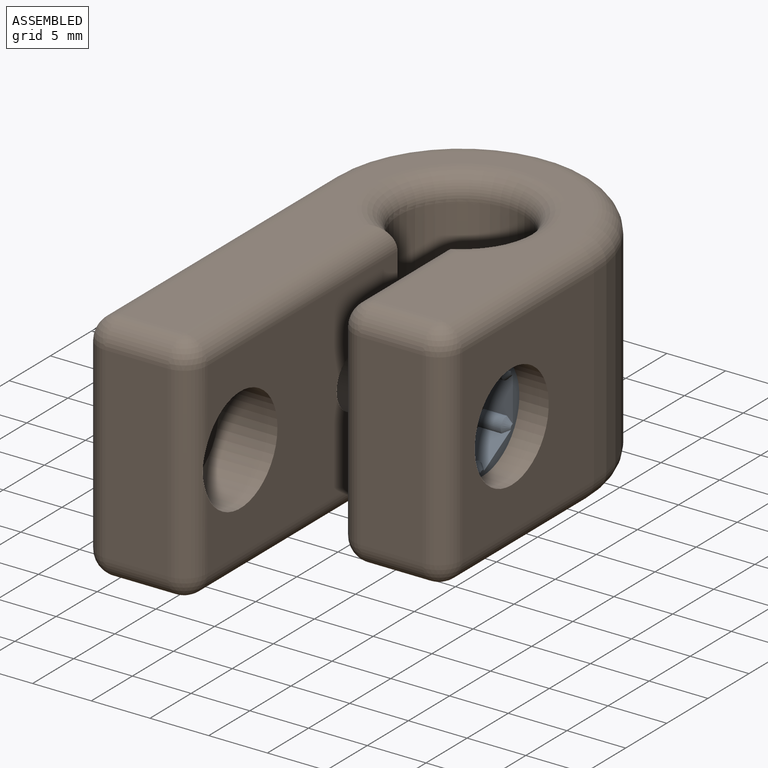
[diagram: assembled view]
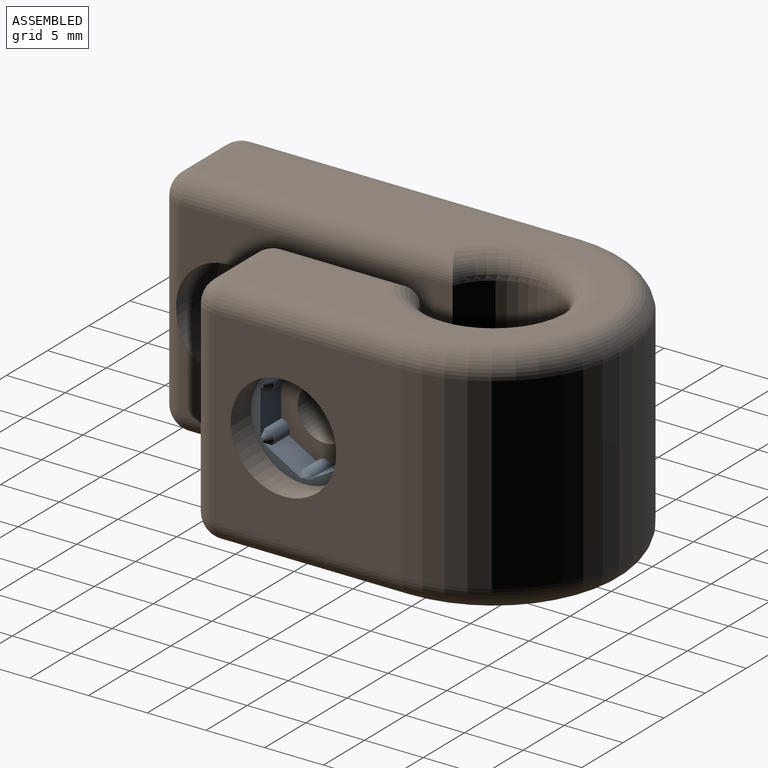
[diagram: assembled view, second angle]
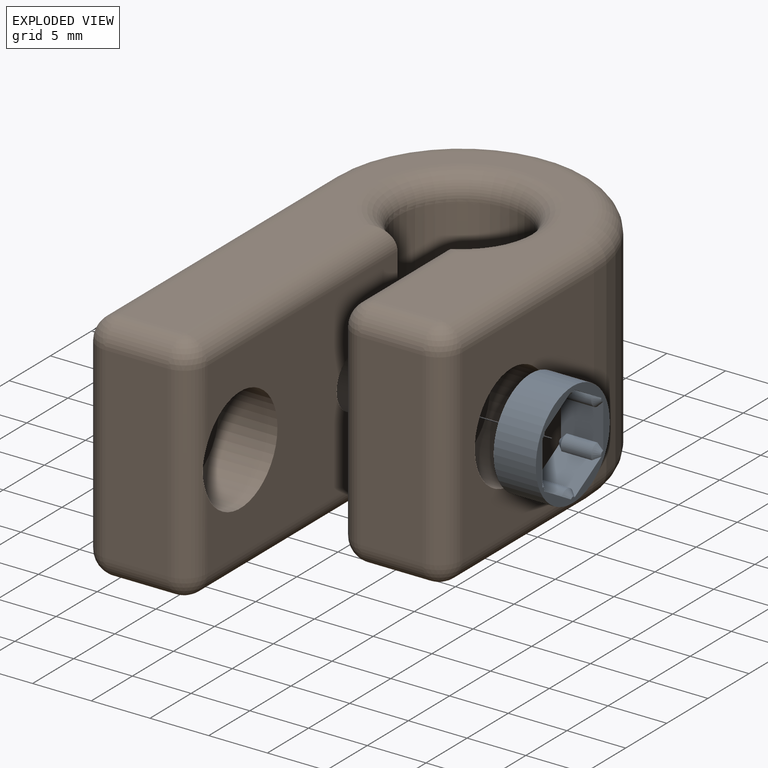
[diagram: exploded view]
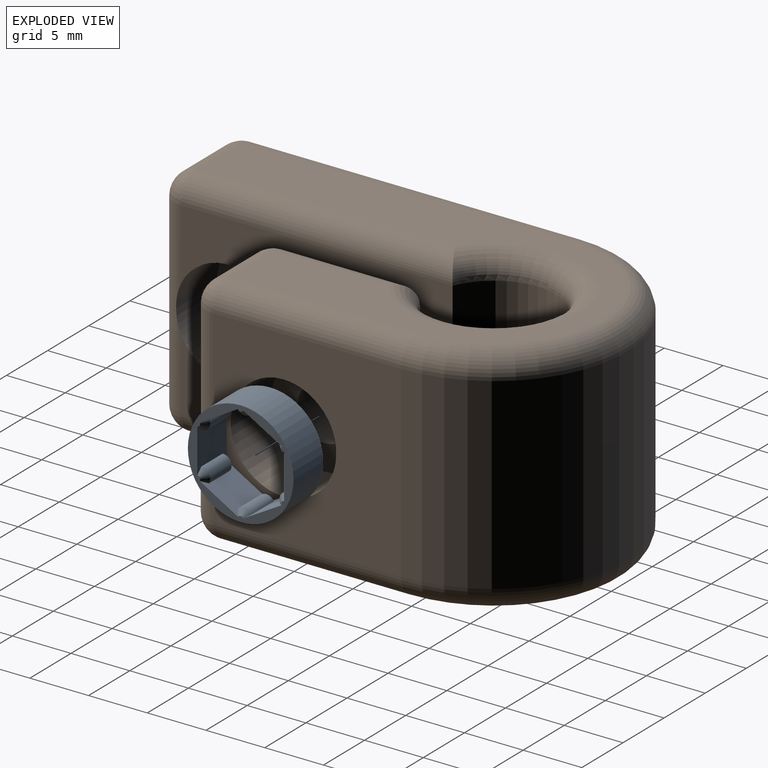
[diagram: exploded view, second angle]
ASSEMBLY  parts=3 mates=2
PART A: 27 faces, bbox 9x9x3.6 mm
  f0: plane 9x9mm, normal (0,0,1), area 16.6mm2, adj f2,f3,f4,f5,f6,f7,f8,f10
  f1: plane 9x9mm, normal (0,0,-1), area 16.6mm2, adj f2,f3,f4,f5,f6,f7,f8,f11
  f2: plane 3.77x3.6mm, normal (0,-1,0), area 10.5mm2, adj f0,f1,f9,f10,f11,f18,f19,f20
  f3: plane 3.6x3.27mm, normal (-0.87,-0.5,0), area 10.5mm2, adj f0,f1,f9,f10,f11,f15,f16,f17
  f4: plane 3.6x3.27mm, normal (-0.87,0.5,0), area 10.5mm2, adj f0,f1,f12,f13,f14,f15,f16,f17
  f5: plane 3.77x3.6mm, normal (0,1,0), area 10.5mm2, adj f0,f1,f12,f13,f14,f24,f25,f26
  f6: plane 3.6x3.27mm, normal (0.87,0.5,0), area 10.5mm2, adj f0,f1,f21,f22,f23,f24,f25,f26
  f7: cylinder r=4.5mm len=9mm, axis (0,0,-1), area 101.8mm2, adj f0,f1
  f8: plane 3.6x3.27mm, normal (0.87,-0.5,0), area 10.5mm2, adj f0,f1,f18,f19,f20,f21,f22,f23
  f9: cylinder r=0.75mm len=2.6mm, axis (0,0,-1), area 4.1mm2, adj f2,f3,f10,f11
  f10: cone r=0.25mm half-angle=45deg, axis (0,0,-1), area 0.7mm2, adj f0,f2,f3,f9
  f11: cone r=0.75mm half-angle=45deg, axis (0,0,1), area 0.7mm2, adj f1,f2,f3,f9
  f12: cylinder r=0.75mm len=2.6mm, axis (0,0,-1), area 4.1mm2, adj f4,f5,f13,f14
  f13: cone r=0.25mm half-angle=45deg, axis (0,0,-1), area 0.7mm2, adj f0,f4,f5,f12
  f14: cone r=0.75mm half-angle=45deg, axis (0,0,1), area 0.7mm2, adj f1,f4,f5,f12
  f15: cone r=0.75mm half-angle=45deg, axis (0,0,1), area 0.7mm2, adj f1,f3,f4,f17
  f16: cone r=0.25mm half-angle=45deg, axis (0,0,-1), area 0.7mm2, adj f0,f3,f4,f17
  f17: cylinder r=0.75mm len=2.6mm, axis (0,0,-1), area 4.1mm2, adj f3,f4,f15,f16
  f18: cone r=0.75mm half-angle=45deg, axis (0,0,1), area 0.7mm2, adj f1,f2,f8,f20
  f19: cone r=0.25mm half-angle=45deg, axis (0,0,-1), area 0.7mm2, adj f0,f2,f8,f20
  f20: cylinder r=0.75mm len=2.6mm, axis (0,0,-1), area 4.1mm2, adj f2,f8,f18,f19
  f21: cone r=0.75mm half-angle=45deg, axis (0,0,1), area 0.7mm2, adj f1,f6,f8,f23
  f22: cone r=0.25mm half-angle=45deg, axis (0,0,-1), area 0.7mm2, adj f0,f6,f8,f23
  f23: cylinder r=0.75mm len=2.6mm, axis (0,0,-1), area 4.1mm2, adj f6,f8,f21,f22
  f24: cone r=0.75mm half-angle=45deg, axis (0,0,1), area 0.7mm2, adj f1,f5,f6,f26
  f25: cone r=0.25mm half-angle=45deg, axis (0,0,-1), area 0.7mm2, adj f0,f5,f6,f26
  f26: cylinder r=0.75mm len=2.6mm, axis (0,0,-1), area 4.1mm2, adj f5,f6,f24,f25
PART B: 47 faces, bbox 24.5x42.2x20 mm
  f0: cylinder r=2.3mm len=4.6mm, axis (1,0,0), area 62.1mm2, adj f3,f17
  f1: cylinder r=2.3mm len=4.6mm, axis (1,0,0), area 62.1mm2, adj f5,f15
  f2: cylinder r=2.3mm len=4.6mm, axis (1,0,0), area 62.1mm2, adj f7,f13
  f3: plane 28x16mm, normal (-1,0,0), area 367.8mm2, adj f0,f10,f16,f34,f42,f46
  f4: plane 16x5.3mm, normal (0,-1,0), area 84.8mm2, adj f35,f36,f42,f43
  f5: plane 23.09x16mm, normal (1,0,0), area 290.6mm2, adj f1,f6,f18,f25,f36,f37
  f6: cylinder r=5.3mm len=16mm, axis (0,0,-1), area 467.2mm2, adj f5,f7,f21,f31
  f7: plane 16x11.09mm, normal (-1,0,0), area 160.9mm2, adj f2,f6,f19,f22,f26
  f8: plane 16x5.3mm, normal (0,-1,0), area 84.8mm2, adj f22,f23,f32,f33
  f9: plane 16x16mm, normal (1,0,0), area 192.4mm2, adj f10,f14,f24,f33,f41
  f10: cylinder r=11.3mm len=22.6mm, axis (0,0,-1), area 568mm2, adj f3,f9,f29,f44
  f11: plane 37.3x18.6mm, normal (0,0,1), area 257mm2, adj f19,f21,f23,f24,f25,f29,f34,f35
  f12: plane 37.3x18.6mm, normal (0,0,-1), area 257mm2, adj f26,f31,f32,f37,f41,f43,f44,f46
  f13: plane 9x9mm, normal (1,0,0), area 47mm2, adj f2,f14
  f14: cylinder r=4.5mm len=9mm, axis (1,0,0), area 141.4mm2, adj f9,f13
  f15: plane 9x9mm, normal (-1,0,0), area 47mm2, adj f1,f16
  f16: cylinder r=4.5mm len=9mm, axis (-1,0,0), area 141.4mm2, adj f3,f15
  f17: plane 9x9mm, normal (1,0,0), area 47mm2, adj f0,f18
  f18: cylinder r=4.5mm len=9mm, axis (1,0,0), area 141.4mm2, adj f5,f17,f36
  f19: cylinder r=2mm len=11.09mm, axis (0,1,0), area 33.4mm2, adj f7,f11,f20,f21
  f20: sphere r=2mm, area 6.3mm2, adj f19,f22,f23
  f21: torus R=7.3mm, axis (0,0,1), area 101.1mm2, adj f6,f11,f19,f25
  f22: cylinder r=2mm len=16mm, axis (0,0,1), area 50.3mm2, adj f7,f8,f20,f27
  f23: cylinder r=2mm len=5.3mm, axis (-1,0,0), area 16.7mm2, adj f8,f11,f20,f28
  f24: cylinder r=2mm len=16mm, axis (0,-1,0), area 50.3mm2, adj f9,f11,f28,f29
  f25: cylinder r=2mm len=23.09mm, axis (0,-1,0), area 71.1mm2, adj f5,f11,f21,f30
  f26: cylinder r=2mm len=11.09mm, axis (0,-1,0), area 33.4mm2, adj f7,f12,f27,f31
  f27: sphere r=2mm, area 6.3mm2, adj f22,f26,f32
  f28: sphere r=2mm, area 6.3mm2, adj f23,f24,f33
  f29: torus R=9.3mm, axis (0,0,1), area 104.4mm2, adj f10,f11,f24,f34
  f30: sphere r=2mm, area 6.3mm2, adj f25,f35,f36
  f31: torus R=7.3mm, axis (0,0,1), area 101.1mm2, adj f6,f12,f26,f37
  f32: cylinder r=2mm len=5.3mm, axis (1,0,0), area 16.7mm2, adj f8,f12,f27,f38
  f33: cylinder r=2mm len=16mm, axis (0,0,1), area 50.3mm2, adj f8,f9,f28,f38
  f34: cylinder r=2mm len=28mm, axis (0,1,0), area 88mm2, adj f3,f11,f29,f39
  f35: cylinder r=2mm len=5.3mm, axis (-1,0,0), area 16.7mm2, adj f4,f11,f30,f39
  f36: cylinder r=2mm len=16mm, axis (0,0,-1), area 48.9mm2, adj f4,f5,f18,f30,f40
  f37: cylinder r=2mm len=23.09mm, axis (0,1,0), area 71.1mm2, adj f5,f12,f31,f40
  f38: sphere r=2mm, area 6.3mm2, adj f32,f33,f41
  f39: sphere r=2mm, area 6.3mm2, adj f34,f35,f42
  f40: sphere r=2mm, area 6.3mm2, adj f36,f37,f43
  f41: cylinder r=2mm len=16mm, axis (0,1,0), area 50.3mm2, adj f9,f12,f38,f44
  f42: cylinder r=2mm len=16mm, axis (0,0,-1), area 50.3mm2, adj f3,f4,f39,f45
  f43: cylinder r=2mm len=5.3mm, axis (1,0,0), area 16.7mm2, adj f4,f12,f40,f45
  f44: torus R=9.3mm, axis (0,0,1), area 104.4mm2, adj f10,f12,f41,f46
  f45: sphere r=2mm, area 6.3mm2, adj f42,f43,f46
  f46: cylinder r=2mm len=28mm, axis (0,-1,0), area 88mm2, adj f3,f12,f44,f45
PART C: same geometry as A
PLACE A rot(axis=(0,1,0),90deg) t=(5.2,-10,10)mm
PLACE B at identity fixed
PLACE C rot(axis=(0.71,0,-0.71),180deg) t=(-6.3,-10,10)mm
MATE fastened C.f7 <-> B.f1  axis (1,0,0) through (-6.3,-10,10)mm
MATE fastened A.f7 <-> B.f1  axis (1,0,0) through (8.8,-10,10)mm
